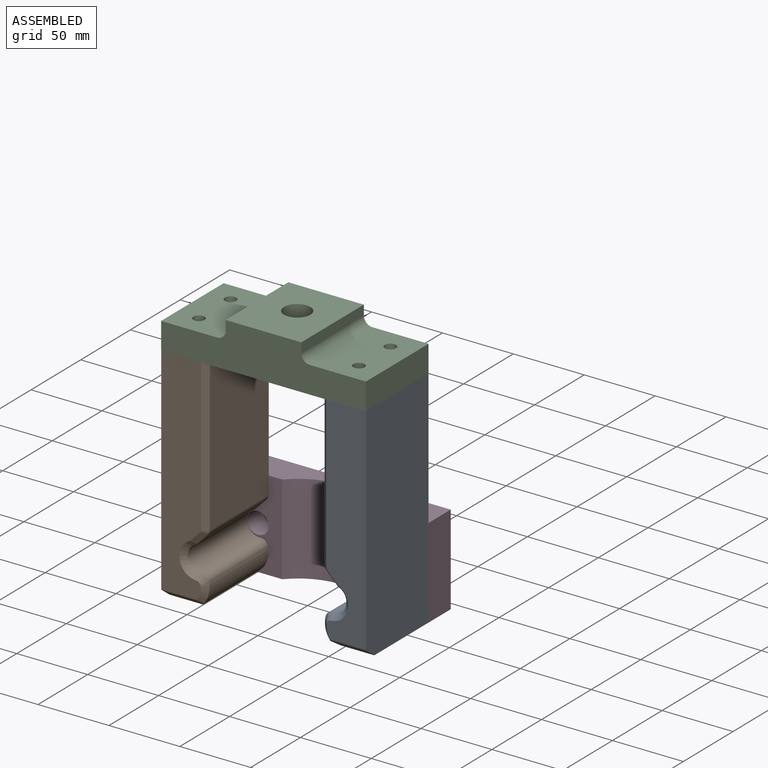
[diagram: assembled view]
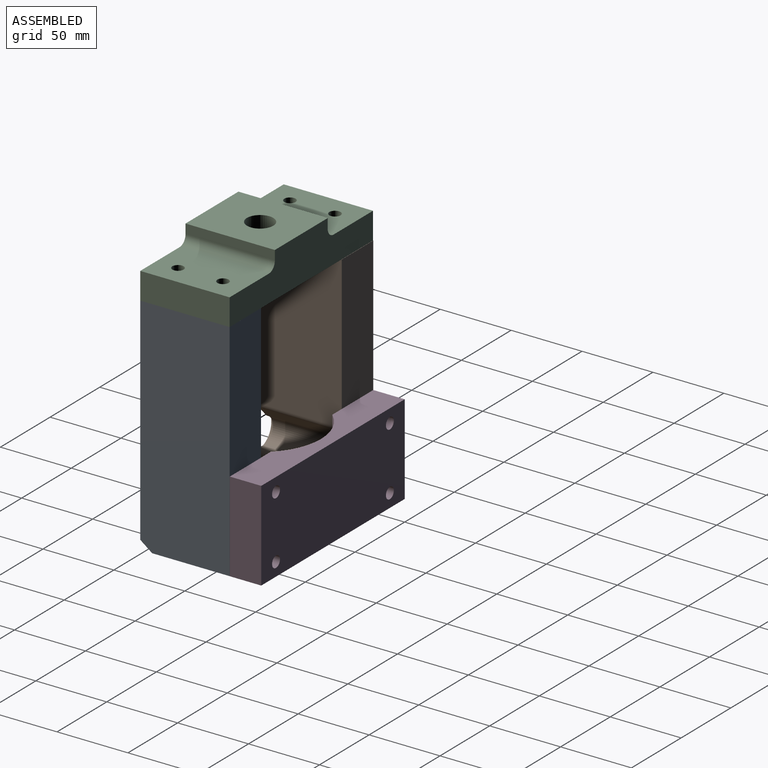
[diagram: assembled view, second angle]
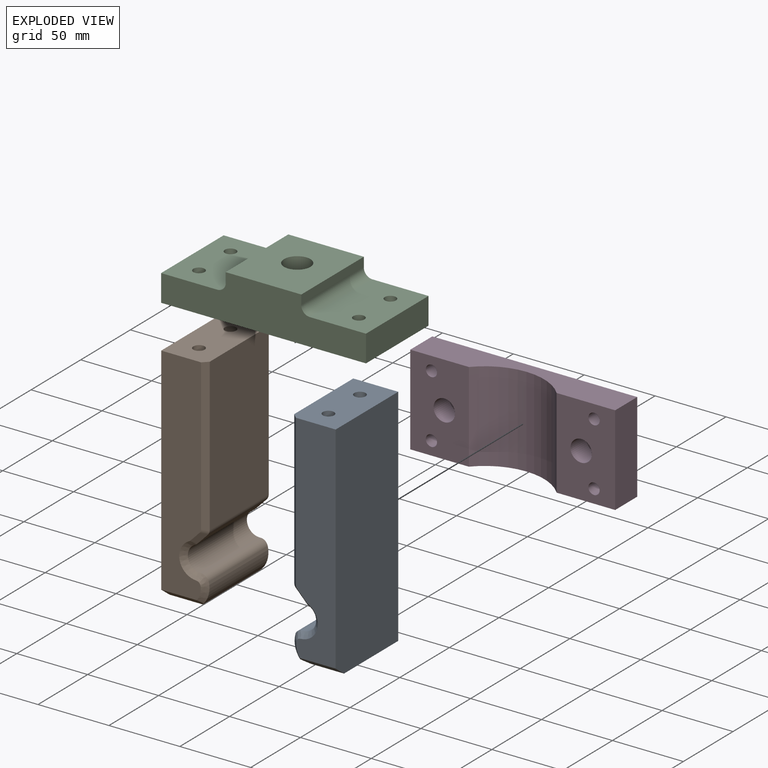
[diagram: exploded view]
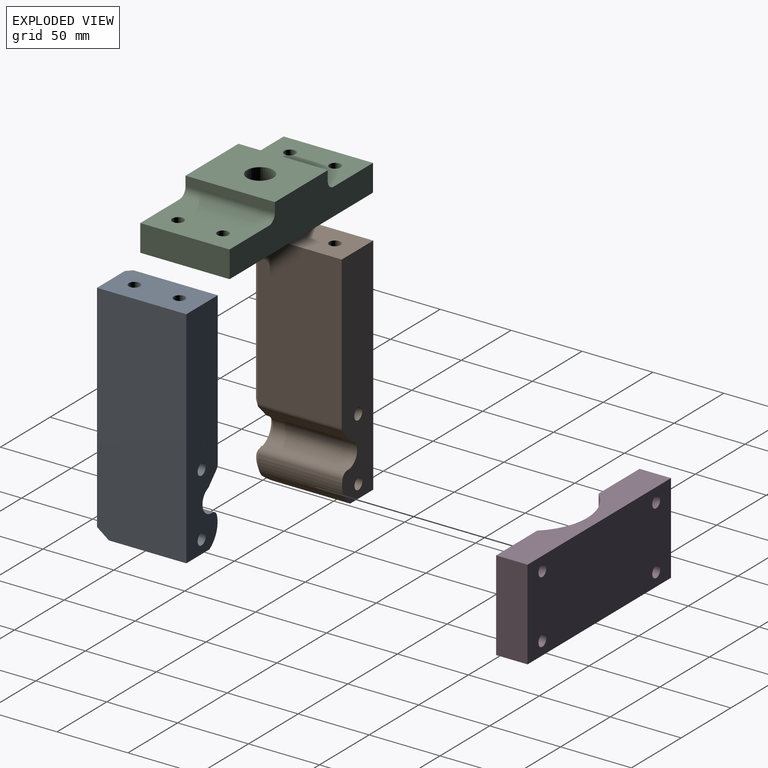
[diagram: exploded view, second angle]
ASSEMBLY  parts=4 mates=3
PART A: 28 faces, bbox 33.2x66.6x160.3 mm
  f0: plane 158.75x62.99mm, normal (1,0,0), area 9973.2mm2, adj f1,f3,f4,f5,f17
  f1: plane 153.92x29.63mm, normal (0,-1,0), area 3925mm2, adj f0,f4,f17,f18,f19,f20,f21,f23
  f2: plane 107.22x59.4mm, normal (-1,0,0), area 6368.3mm2, adj f3,f4,f18,f22
  f3: plane 158.75x31.7mm, normal (0,1,0), area 4602.1mm2, adj f0,f2,f4,f5,f6,f7,f8,f13
  f4: plane 62.99x31.7mm, normal (0,0,1), area 1891mm2, adj f0,f1,f2,f3,f9,f11,f18
  f5: plane 54.56x23.28mm, normal (0,0,-1), area 1270.3mm2, adj f0,f3,f6,f17
  f6: cylinder r=16.71mm len=59.4mm, axis (0,-1,0), area 1266.4mm2, adj f3,f5,f17,f21,f26
  f7: cylinder r=8.92mm len=59.4mm, axis (0,-1,0), area 1467.9mm2, adj f3,f20,f24,f26
  f8: plane 59.4x7.54mm, normal (-0.72,0,-0.69), area 623mm2, adj f3,f19,f22,f24
  f9: cylinder r=3.98mm len=25.4mm, axis (0,0,1), area 634.4mm2, adj f4,f10
  f10: plane 7.95x7.95mm, normal (0,0,1), area 49.6mm2, adj f9
  f11: cylinder r=3.98mm len=25.4mm, axis (0,0,1), area 634.4mm2, adj f4,f12
  f12: plane 7.95x7.95mm, normal (0,0,1), area 49.6mm2, adj f11
  f13: cylinder r=3.98mm len=25.4mm, axis (0,1,0), area 634.4mm2, adj f3,f14
  f14: plane 7.95x7.95mm, normal (0,1,0), area 49.6mm2, adj f13
  f15: cylinder r=3.98mm len=25.4mm, axis (0,1,0), area 634.4mm2, adj f3,f16
  f16: plane 7.95x7.95mm, normal (0,1,0), area 49.6mm2, adj f15
  f17: plane 28.05x8.92mm, normal (0,-0.6,-0.8), area 274.1mm2, adj f0,f1,f5,f6,f21
  f18: plane 107.82x3.61mm, normal (-0.71,-0.71,0), area 544.7mm2, adj f1,f2,f4,f22,f23
  f19: plane 10.01x9.65mm, normal (-0.51,-0.71,-0.49), area 52.4mm2, adj f1,f8,f22,f23,f24,f25
  f20: cone r=8.92mm half-angle=45deg, axis (0,-1,0), area 149.8mm2, adj f1,f7,f24,f25,f26,f27
  f21: cone r=13.12mm half-angle=45deg, axis (0,1,0), area 68.4mm2, adj f1,f6,f17,f26,f27
  f22: cylinder r=5.08mm len=59.43mm, axis (0,-1,0), area 231.8mm2, adj f2,f3,f8,f18,f19,f23
  f23: cylinder r=5.08mm len=4.57mm, axis (-0.68,0.68,-0.27), area 14.3mm2, adj f1,f18,f19,f22
  f24: cylinder r=5.08mm len=59.4mm, axis (0,-1,0), area 112.4mm2, adj f3,f7,f8,f19,f20,f25
  f25: bspline ~6.74x6.36mm, area 6.8mm2, adj f1,f19,f20,f24
  f26: cylinder r=5.08mm len=59.55mm, axis (0,1,0), area 416.4mm2, adj f3,f6,f7,f20,f21,f27
  f27: bspline ~8.18x6.66mm, area 27.5mm2, adj f1,f20,f21,f26
PART B: 28 faces, bbox 33.2x66.6x160.3 mm
  f0: plane 54.57x23.28mm, normal (0,0,-1), area 1270.1mm2, adj f1,f2,f5,f17
  f1: plane 158.75x62.99mm, normal (-1,0,0), area 9973.2mm2, adj f0,f4,f5,f6,f17
  f2: cylinder r=16.72mm len=59.4mm, axis (0,-1,0), area 1266.2mm2, adj f0,f5,f17,f21,f24
  f3: plane 107.21x59.4mm, normal (1,0,0), area 6367.5mm2, adj f5,f6,f18,f26
  f4: plane 153.93x29.63mm, normal (0,-1,0), area 3925.1mm2, adj f1,f6,f17,f18,f19,f20,f21,f23
  f5: plane 158.75x31.7mm, normal (0,1,0), area 4602.5mm2, adj f0,f1,f2,f3,f6,f7,f8,f13
  f6: plane 62.99x31.7mm, normal (0,0,1), area 1891.4mm2, adj f1,f3,f4,f5,f9,f11,f18
  f7: plane 59.4x7.56mm, normal (0.72,0,-0.69), area 624.3mm2, adj f5,f19,f22,f26
  f8: cylinder r=8.92mm len=59.4mm, axis (0,-1,0), area 1468.1mm2, adj f5,f20,f22,f24
  f9: cylinder r=3.97mm len=25.4mm, axis (0,0,1), area 633.4mm2, adj f6,f10
  f10: plane 7.94x7.94mm, normal (0,0,1), area 49.5mm2, adj f9
  f11: cylinder r=3.97mm len=25.4mm, axis (0,0,1), area 633.4mm2, adj f6,f12
  f12: plane 7.94x7.94mm, normal (0,0,1), area 49.5mm2, adj f11
  f13: cylinder r=3.97mm len=25.4mm, axis (0,1,0), area 633.4mm2, adj f5,f14
  f14: plane 7.94x7.94mm, normal (0,1,0), area 49.5mm2, adj f13
  f15: cylinder r=3.98mm len=25.4mm, axis (0,1,0), area 634.4mm2, adj f5,f16
  f16: plane 7.95x7.95mm, normal (0,1,0), area 49.6mm2, adj f15
  f17: plane 28.05x8.91mm, normal (0,-0.6,-0.8), area 273.9mm2, adj f0,f1,f2,f4,f21
  f18: plane 107.81x3.61mm, normal (0.71,-0.71,0), area 544.6mm2, adj f3,f4,f6,f26,f27
  f19: plane 10.03x9.66mm, normal (0.51,-0.71,-0.49), area 52.5mm2, adj f4,f7,f22,f23,f26,f27
  f20: cone r=8.92mm half-angle=45deg, axis (0,-1,0), area 149.8mm2, adj f4,f8,f22,f23,f24,f25
  f21: cone r=13.13mm half-angle=45deg, axis (0,1,0), area 68.4mm2, adj f2,f4,f17,f24,f25
  f22: cylinder r=5.08mm len=59.4mm, axis (0,-1,0), area 111.9mm2, adj f5,f7,f8,f19,f20,f23
  f23: bspline ~6.74x6.36mm, area 6.7mm2, adj f4,f19,f20,f22
  f24: cylinder r=5.08mm len=59.55mm, axis (0,1,0), area 417.3mm2, adj f2,f5,f8,f20,f21,f25
  f25: bspline ~8.13x6.64mm, area 27.5mm2, adj f4,f20,f21,f24
  f26: cylinder r=5.08mm len=59.43mm, axis (0,-1,0), area 231.8mm2, adj f3,f5,f7,f18,f19,f27
  f27: cylinder r=5.08mm len=4.57mm, axis (-0.68,-0.68,0.27), area 14.3mm2, adj f4,f18,f19,f26
PART C: 17 faces, bbox 144.5x63x31.7 mm
  f0: plane 62.99x53.26mm, normal (0,0,1), area 3082.8mm2, adj f1,f2,f6,f9,f12
  f1: plane 144.46x31.7mm, normal (0,-1,0), area 3429.4mm2, adj f0,f3,f4,f5,f6,f7,f8,f9
  f2: plane 144.46x31.7mm, normal (0,1,0), area 3429.4mm2, adj f0,f3,f4,f5,f6,f7,f8,f9
  f3: plane 62.99x18.92mm, normal (1,0,0), area 1192mm2, adj f1,f2,f5,f7
  f4: plane 62.99x18.92mm, normal (-1,0,0), area 1192mm2, adj f1,f2,f5,f8
  f5: plane 144.46x62.99mm, normal (0,0,-1), area 8629.6mm2, adj f1,f2,f3,f4,f12,f13,f14,f15
  f6: plane 62.99x6.82mm, normal (1,0,0), area 429.8mm2, adj f0,f1,f2,f10
  f7: plane 62.99x39.65mm, normal (0,0,1), area 2398.5mm2, adj f1,f2,f3,f10,f15,f16
  f8: plane 62.99x39.65mm, normal (0,0,1), area 2398.3mm2, adj f1,f2,f4,f11,f13,f14
  f9: plane 62.99x6.82mm, normal (-1,0,0), area 429.8mm2, adj f0,f1,f2,f11
  f10: cylinder r=5.95mm len=62.99mm, axis (0,1,0), area 589.1mm2, adj f1,f2,f6,f7
  f11: cylinder r=5.95mm len=62.99mm, axis (0,1,0), area 589.1mm2, adj f1,f2,f8,f9
  f12: cylinder r=9.31mm len=31.7mm, axis (0,0,1), area 1854.1mm2, adj f0,f5
  f13: cylinder r=3.98mm len=18.92mm, axis (0,0,1), area 472.6mm2, adj f5,f8
  f14: cylinder r=3.97mm len=18.92mm, axis (0,0,1), area 471.9mm2, adj f5,f8
  f15: cylinder r=3.97mm len=18.92mm, axis (0,0,1), area 471.9mm2, adj f5,f7
  f16: cylinder r=3.97mm len=18.92mm, axis (0,0,1), area 471.9mm2, adj f5,f7
PART D: 16 faces, bbox 144.5x22.2x63.5 mm
  f0: plane 63.53x41.28mm, normal (0,1,0), area 2343.7mm2, adj f1,f2,f4,f9,f10,f11,f12
  f1: plane 63.53x22.17mm, normal (1,0,0), area 1408.6mm2, adj f0,f2,f4,f5
  f2: plane 144.48x22.17mm, normal (0,0,1), area 2615.7mm2, adj f0,f1,f3,f5,f6,f11
  f3: plane 63.53x22.17mm, normal (-1,0,0), area 1408.6mm2, adj f2,f4,f5,f6
  f4: plane 144.48x22.17mm, normal (0,0,-1), area 2615.7mm2, adj f0,f1,f3,f5,f6,f11
  f5: plane 144.48x63.53mm, normal (0,-1,0), area 8979.9mm2, adj f1,f2,f3,f4,f7,f8,f9,f10
  f6: plane 63.53x41.28mm, normal (0,1,0), area 2343.7mm2, adj f2,f3,f4,f7,f8,f11,f14
  f7: cylinder r=3.97mm len=22.17mm, axis (0,-1,0), area 552.9mm2, adj f5,f6
  f8: cylinder r=3.97mm len=22.17mm, axis (0,-1,0), area 552.9mm2, adj f5,f6
  f9: cylinder r=3.97mm len=22.17mm, axis (0,-1,0), area 552.9mm2, adj f0,f5
  f10: cylinder r=3.97mm len=22.17mm, axis (0,-1,0), area 552.9mm2, adj f0,f5
  f11: cylinder r=41.81mm len=63.53mm, axis (0,0,-1), area 4429.8mm2, adj f0,f2,f4,f6
  f12: cylinder r=7.56mm len=15.8mm, axis (0,1,0), area 750.1mm2, adj f0,f13
  f13: plane 15.11x15.11mm, normal (0,1,0), area 179.4mm2, adj f12
  f14: cylinder r=7.56mm len=15.8mm, axis (0,1,0), area 750.1mm2, adj f6,f15
  f15: plane 15.11x15.11mm, normal (0,1,0), area 179.4mm2, adj f14
PLACE A t=(59.44,14.32,20.67)mm
PLACE B t=(-53.32,14.47,20.64)mm fixed
PLACE C t=(3.06,14.32,115.89)mm
PLACE D rot(axis=(0,0,1),180deg) t=(3.07,14.47,-26.97)mm
MATE cylindrical C.f2 <-> A.f3  axis (0,1,0) through (75.29,14.32,100.04)mm
MATE cylindrical B.f11 <-> C.f14  axis (0,0,1) through (-53.32,-1.4,100.02)mm
MATE cylindrical D.f9 <-> B.f13  axis (0,-1,0) through (-54.26,14.47,-49.21)mm
